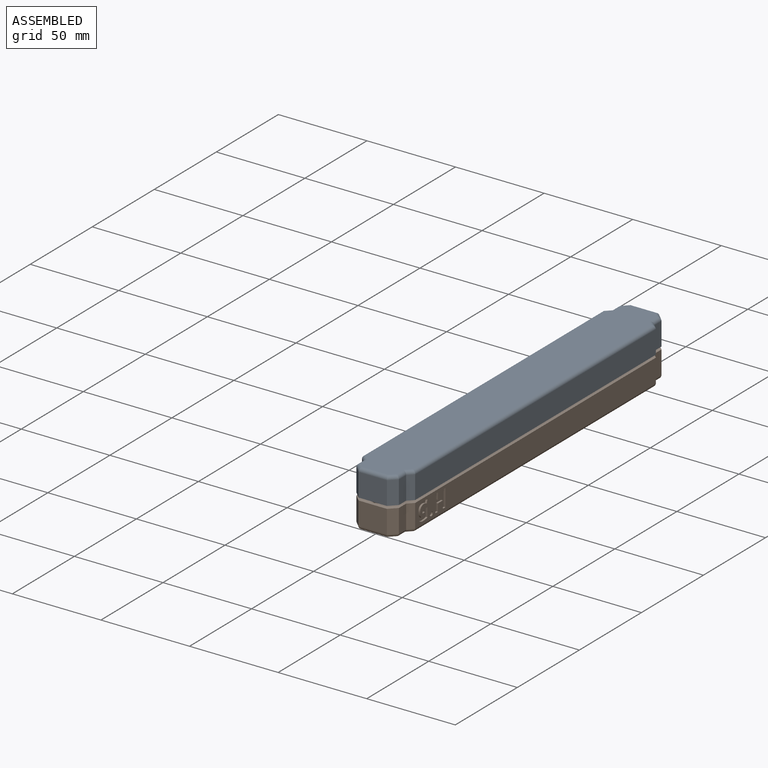
[diagram: assembled view]
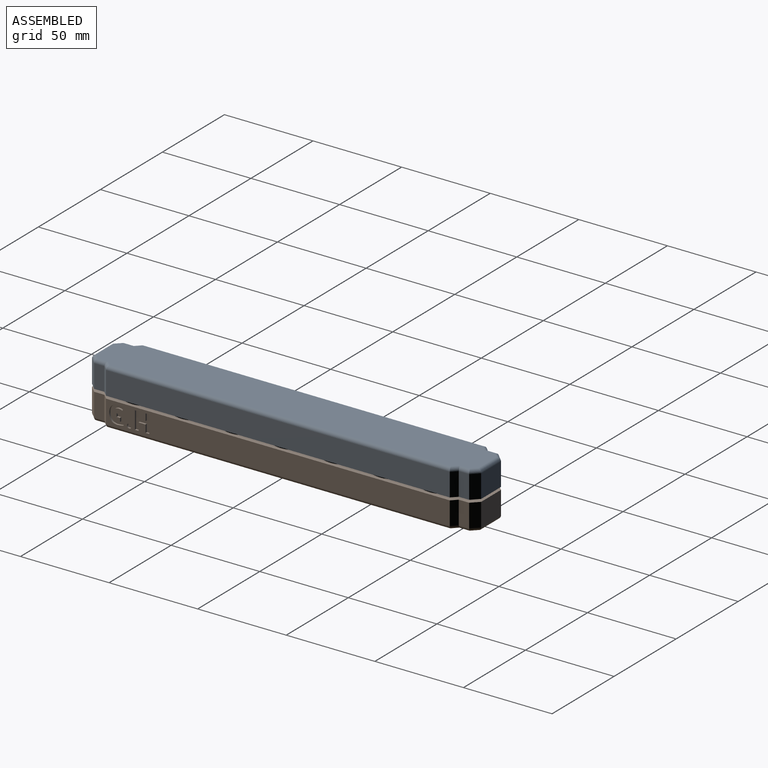
[diagram: assembled view, second angle]
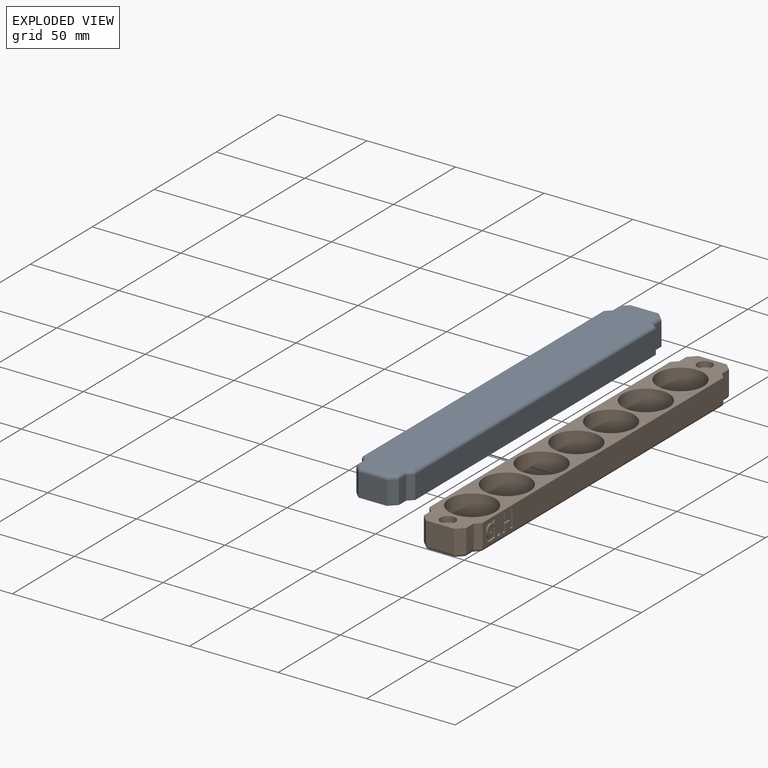
[diagram: exploded view]
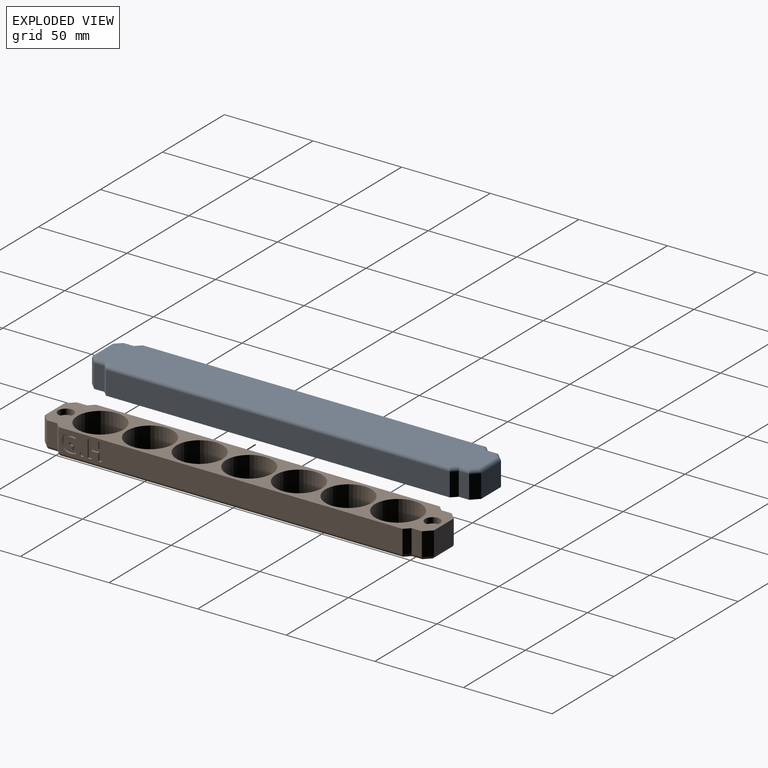
[diagram: exploded view, second angle]
ASSEMBLY  parts=2 mates=2
PART A: 52 faces, bbox 30x219.6x15 mm
  f0: plane 219.64x30mm, normal (0,0,1), area 2591.3mm2, adj f1,f2,f4,f6,f8,f10,f12,f14
  f1: plane 194x13mm, normal (1,0,0), area 2522mm2, adj f0,f19,f20,f42
  f2: plane 194x13mm, normal (-1,0,0), area 2522mm2, adj f0,f18,f21,f45
  f3: plane 215.64x26mm, normal (0,0,-1), area 5468.8mm2, adj f36,f37,f38,f39,f40,f41,f42,f43
  f4: cylinder r=13mm len=26mm, axis (0,0,1), area 1061.9mm2, adj f0,f5
  f5: plane 26x26mm, normal (0,0,1), area 530.9mm2, adj f4
  f6: cylinder r=13mm len=26mm, axis (0,0,1), area 1061.9mm2, adj f0,f7
  f7: plane 26x26mm, normal (0,0,1), area 530.9mm2, adj f6
  f8: cylinder r=13mm len=26mm, axis (0,0,1), area 1061.9mm2, adj f0,f9
  f9: plane 26x26mm, normal (0,0,1), area 530.9mm2, adj f8
  f10: cylinder r=13mm len=26mm, axis (0,0,1), area 1061.9mm2, adj f0,f11
  f11: plane 26x26mm, normal (0,0,1), area 530.9mm2, adj f10
  f12: cylinder r=13mm len=26mm, axis (0,0,1), area 1061.9mm2, adj f0,f13
  f13: plane 26x26mm, normal (0,0,1), area 530.9mm2, adj f12
  f14: cylinder r=13mm len=26mm, axis (0,0,1), area 1061.9mm2, adj f0,f15
  f15: plane 26x26mm, normal (0,0,1), area 530.9mm2, adj f14
  f16: cylinder r=13mm len=26mm, axis (0,0,1), area 1061.9mm2, adj f0,f17
  f17: plane 26x26mm, normal (0,0,1), area 530.9mm2, adj f16
  f18: plane 13x3mm, normal (-0.71,0.71,0), area 55.2mm2, adj f0,f2,f22,f47
  f19: plane 13x3mm, normal (0.71,0.71,0), area 55.2mm2, adj f0,f1,f23,f44
  f20: plane 13x3mm, normal (0.71,-0.71,0), area 55.2mm2, adj f0,f1,f27,f40
  f21: plane 13x3mm, normal (-0.71,-0.71,0), area 55.2mm2, adj f0,f2,f25,f43
  f22: plane 13x5.82mm, normal (-1,0,0), area 75.6mm2, adj f0,f18,f28,f49
  f23: plane 13x5.82mm, normal (1,0,0), area 75.6mm2, adj f0,f19,f29,f46
  f24: plane 16x13mm, normal (0,1,0), area 208mm2, adj f0,f28,f29,f50
  f25: plane 13x5.82mm, normal (-1,0,0), area 75.6mm2, adj f0,f21,f31,f41
  f26: plane 16x13mm, normal (0,-1,0), area 208mm2, adj f0,f30,f31,f37
  f27: plane 13x5.82mm, normal (1,0,0), area 75.6mm2, adj f0,f20,f30,f38
  f28: plane 13x4mm, normal (-0.71,0.71,0), area 73.5mm2, adj f0,f22,f24,f51
  f29: plane 13x4mm, normal (0.71,0.71,0), area 73.5mm2, adj f0,f23,f24,f48
  f30: plane 13x4mm, normal (0.71,-0.71,0), area 73.5mm2, adj f0,f26,f27,f36
  f31: plane 13x4mm, normal (-0.71,-0.71,0), area 73.5mm2, adj f0,f25,f26,f39
  f32: cylinder r=4.25mm len=8.5mm, axis (0,0,1), area 85.5mm2, adj f0,f33
  f33: plane 8.5x8.5mm, normal (0,0,1), area 56.7mm2, adj f32
  f34: cylinder r=4.25mm len=8.5mm, axis (0,0,1), area 85.5mm2, adj f0,f35
  f35: plane 8.5x8.5mm, normal (0,0,1), area 56.7mm2, adj f34
  f36: cylinder r=2mm len=5.41mm, axis (0.71,0.71,0), area 15.9mm2, adj f3,f30,f37,f38
  f37: cylinder r=2mm len=16mm, axis (-1,0,0), area 48.4mm2, adj f3,f26,f36,f39
  f38: cylinder r=2mm len=6.65mm, axis (0,-1,0), area 18.3mm2, adj f3,f27,f36,f40
  f39: cylinder r=2mm len=5.41mm, axis (-0.71,0.71,0), area 15.9mm2, adj f3,f31,f37,f41
  f40: cylinder r=2mm len=5mm, axis (-0.71,-0.71,0), area 13.3mm2, adj f3,f20,f38,f42
  f41: cylinder r=2mm len=6.65mm, axis (0,1,0), area 18.3mm2, adj f3,f25,f39,f43
  f42: cylinder r=2mm len=194mm, axis (0,1,0), area 607.6mm2, adj f1,f3,f40,f44
  f43: cylinder r=2mm len=5mm, axis (0.71,-0.71,0), area 13.3mm2, adj f3,f21,f41,f45
  f44: cylinder r=2mm len=5mm, axis (-0.71,0.71,0), area 13.3mm2, adj f3,f19,f42,f46
  f45: cylinder r=2mm len=194mm, axis (0,-1,0), area 607.6mm2, adj f2,f3,f43,f47
  f46: cylinder r=2mm len=6.65mm, axis (0,-1,0), area 18.3mm2, adj f3,f23,f44,f48
  f47: cylinder r=2mm len=5mm, axis (0.71,0.71,0), area 13.3mm2, adj f3,f18,f45,f49
  f48: cylinder r=2mm len=5.41mm, axis (-0.71,0.71,0), area 15.9mm2, adj f3,f29,f46,f50
  f49: cylinder r=2mm len=6.65mm, axis (0,1,0), area 18.3mm2, adj f3,f22,f47,f51
  f50: cylinder r=2mm len=16mm, axis (1,0,0), area 48.4mm2, adj f3,f24,f48,f51
  f51: cylinder r=2mm len=5.41mm, axis (0.71,0.71,0), area 15.9mm2, adj f3,f28,f49,f50
PART B: 94 faces, bbox 30x219.6x15 mm
  f0: plane 194x13mm, normal (1,0,0), area 2421.1mm2, adj f1,f19,f20,f42,f52,f53,f54,f55
  f1: plane 219.64x30mm, normal (0,0,1), area 2591.3mm2, adj f0,f2,f4,f6,f8,f10,f12,f14
  f2: plane 194x13mm, normal (-1,0,0), area 2522mm2, adj f1,f18,f21,f45
  f3: plane 215.64x26mm, normal (0,0,-1), area 5468.8mm2, adj f36,f37,f38,f39,f40,f41,f42,f43
  f4: cylinder r=13mm len=26mm, axis (0,0,1), area 1061.9mm2, adj f1,f5
  f5: plane 26x26mm, normal (0,0,1), area 530.9mm2, adj f4
  f6: cylinder r=13mm len=26mm, axis (0,0,1), area 1061.9mm2, adj f1,f7
  f7: plane 26x26mm, normal (0,0,1), area 530.9mm2, adj f6
  f8: cylinder r=13mm len=26mm, axis (0,0,1), area 1061.9mm2, adj f1,f9
  f9: plane 26x26mm, normal (0,0,1), area 530.9mm2, adj f8
  f10: cylinder r=13mm len=26mm, axis (0,0,1), area 1061.9mm2, adj f1,f11
  f11: plane 26x26mm, normal (0,0,1), area 530.9mm2, adj f10
  f12: cylinder r=13mm len=26mm, axis (0,0,1), area 1061.9mm2, adj f1,f13
  f13: plane 26x26mm, normal (0,0,1), area 530.9mm2, adj f12
  f14: cylinder r=13mm len=26mm, axis (0,0,1), area 1061.9mm2, adj f1,f15
  f15: plane 26x26mm, normal (0,0,1), area 530.9mm2, adj f14
  f16: cylinder r=13mm len=26mm, axis (0,0,1), area 1061.9mm2, adj f1,f17
  f17: plane 26x26mm, normal (0,0,1), area 530.9mm2, adj f16
  f18: plane 13x3mm, normal (-0.71,0.71,0), area 55.2mm2, adj f1,f2,f22,f47
  f19: plane 13x3mm, normal (0.71,0.71,0), area 55.2mm2, adj f0,f1,f23,f44
  f20: plane 13x3mm, normal (0.71,-0.71,0), area 55.2mm2, adj f0,f1,f27,f40
  f21: plane 13x3mm, normal (-0.71,-0.71,0), area 55.2mm2, adj f1,f2,f25,f43
  f22: plane 13x5.82mm, normal (-1,0,0), area 75.6mm2, adj f1,f18,f28,f49
  f23: plane 13x5.82mm, normal (1,0,0), area 75.6mm2, adj f1,f19,f29,f46
  f24: plane 16x13mm, normal (0,1,0), area 208mm2, adj f1,f28,f29,f50
  f25: plane 13x5.82mm, normal (-1,0,0), area 75.6mm2, adj f1,f21,f31,f41
  f26: plane 16x13mm, normal (0,-1,0), area 208mm2, adj f1,f30,f31,f37
  f27: plane 13x5.82mm, normal (1,0,0), area 75.6mm2, adj f1,f20,f30,f38
  f28: plane 13x4mm, normal (-0.71,0.71,0), area 73.5mm2, adj f1,f22,f24,f51
  f29: plane 13x4mm, normal (0.71,0.71,0), area 73.5mm2, adj f1,f23,f24,f48
  f30: plane 13x4mm, normal (0.71,-0.71,0), area 73.5mm2, adj f1,f26,f27,f36
  f31: plane 13x4mm, normal (-0.71,-0.71,0), area 73.5mm2, adj f1,f25,f26,f39
  f32: cylinder r=4.25mm len=8.5mm, axis (0,0,1), area 85.5mm2, adj f1,f33
  f33: plane 8.5x8.5mm, normal (0,0,1), area 56.7mm2, adj f32
  f34: cylinder r=4.25mm len=8.5mm, axis (0,0,1), area 85.5mm2, adj f1,f35
  f35: plane 8.5x8.5mm, normal (0,0,1), area 56.7mm2, adj f34
  f36: cylinder r=2mm len=5.41mm, axis (0.71,0.71,0), area 15.9mm2, adj f3,f30,f37,f38
  f37: cylinder r=2mm len=16mm, axis (-1,0,0), area 48.4mm2, adj f3,f26,f36,f39
  f38: cylinder r=2mm len=6.65mm, axis (0,-1,0), area 18.3mm2, adj f3,f27,f36,f40
  f39: cylinder r=2mm len=5.41mm, axis (-0.71,0.71,0), area 15.9mm2, adj f3,f31,f37,f41
  f40: cylinder r=2mm len=5mm, axis (-0.71,-0.71,0), area 13.3mm2, adj f3,f20,f38,f42
  f41: cylinder r=2mm len=6.65mm, axis (0,1,0), area 18.3mm2, adj f3,f25,f39,f43
  f42: cylinder r=2mm len=194mm, axis (0,1,0), area 607.6mm2, adj f0,f3,f40,f44
  f43: cylinder r=2mm len=5mm, axis (0.71,-0.71,0), area 13.3mm2, adj f3,f21,f41,f45
  f44: cylinder r=2mm len=5mm, axis (-0.71,0.71,0), area 13.3mm2, adj f3,f19,f42,f46
  f45: cylinder r=2mm len=194mm, axis (0,-1,0), area 607.6mm2, adj f2,f3,f43,f47
  f46: cylinder r=2mm len=6.65mm, axis (0,-1,0), area 18.3mm2, adj f3,f23,f44,f48
  f47: cylinder r=2mm len=5mm, axis (0.71,0.71,0), area 13.3mm2, adj f3,f18,f45,f49
  f48: cylinder r=2mm len=5.41mm, axis (-0.71,0.71,0), area 15.9mm2, adj f3,f29,f46,f50
  f49: cylinder r=2mm len=6.65mm, axis (0,1,0), area 18.3mm2, adj f3,f22,f47,f51
  f50: cylinder r=2mm len=16mm, axis (1,0,0), area 48.4mm2, adj f3,f24,f48,f51
  f51: cylinder r=2mm len=5.41mm, axis (0.71,0.71,0), area 15.9mm2, adj f3,f28,f49,f50
  f52: plane 2.1x1mm, normal (0,0,1), area 2.1mm2, adj f0,f53,f63,f64
  f53: plane 9.92x1mm, normal (0,-1,0), area 9.9mm2, adj f0,f52,f54,f64
  f54: plane 2.1x1mm, normal (0,0,-1), area 2.1mm2, adj f0,f53,f55,f64
  f55: plane 3.89x1mm, normal (0,1,0), area 3.9mm2, adj f0,f54,f56,f64
  f56: plane 3.93x1mm, normal (0,0,-1), area 3.9mm2, adj f0,f55,f57,f64
  f57: plane 3.89x1mm, normal (0,-1,0), area 3.9mm2, adj f0,f56,f58,f64
  f58: plane 2.1x1mm, normal (0,0,-1), area 2.1mm2, adj f0,f57,f59,f64
  f59: plane 9.92x1mm, normal (0,1,0), area 9.9mm2, adj f0,f58,f60,f64
  f60: plane 2.1x1mm, normal (0,0,1), area 2.1mm2, adj f0,f59,f61,f64
  f61: plane 4.28x1mm, normal (0,-1,0), area 4.3mm2, adj f0,f60,f62,f64
  f62: plane 3.93x1mm, normal (0,0,1), area 3.9mm2, adj f0,f61,f63,f64
  f63: plane 4.28x1mm, normal (0,1,0), area 4.3mm2, adj f0,f52,f62,f64
  f64: plane 9.92x8.13mm, normal (1,0,0), area 48.5mm2, adj f52,f53,f54,f55,f56,f57,f58,f59
  f65: extruded ~1x0.86mm, area 0.9mm2, adj f0,f66,f72,f73
  f66: extruded ~1x0.85mm, area 0.9mm2, adj f0,f65,f67,f73
  f67: extruded ~1x0.88mm, area 1mm2, adj f0,f66,f68,f73
  f68: extruded ~1x0.87mm, area 0.9mm2, adj f0,f67,f69,f73
  f69: extruded ~1x0.84mm, area 0.9mm2, adj f0,f68,f70,f73
  f70: extruded ~1x0.85mm, area 0.9mm2, adj f0,f69,f71,f73
  f71: extruded ~1x0.87mm, area 0.9mm2, adj f0,f70,f72,f73
  f72: extruded ~1x0.89mm, area 1mm2, adj f0,f65,f71,f73
  f73: plane 2.37x2.3mm, normal (1,0,0), area 4.5mm2, adj f65,f66,f67,f68,f69,f70,f71,f72
  f74: plane 3.93x1mm, normal (0,0,-1), area 3.9mm2, adj f0,f75,f92,f93
  f75: plane 1.75x1mm, normal (0,1,0), area 1.8mm2, adj f0,f74,f76,f93
  f76: plane 1.88x1mm, normal (0,0,1), area 1.9mm2, adj f0,f75,f77,f93
  f77: plane 2.07x1mm, normal (0,1,0), area 2.1mm2, adj f0,f76,f78,f93
  f78: extruded ~1.34x1mm, area 1.3mm2, adj f0,f77,f79,f93
  f79: extruded ~1.92x1mm, area 2.2mm2, adj f0,f78,f80,f93
  f80: extruded ~2.47x1mm, area 2.6mm2, adj f0,f79,f81,f93
  f81: extruded ~2.46x1mm, area 2.7mm2, adj f0,f80,f82,f93
  f82: extruded ~2.18x1mm, area 2.4mm2, adj f0,f81,f83,f93
  f83: extruded ~2.26x1mm, area 2.3mm2, adj f0,f82,f84,f93
  f84: plane 1.68x1mm, normal (0,-0.92,0.38), area 1.8mm2, adj f0,f83,f85,f93
  f85: extruded ~2.95x1mm, area 3mm2, adj f0,f84,f86,f93
  f86: extruded ~3.81x1.34mm, area 4.1mm2, adj f0,f85,f87,f93
  f87: extruded ~3.74x1.37mm, area 4.1mm2, adj f0,f86,f88,f93
  f88: extruded ~3.79x1.18mm, area 4.1mm2, adj f0,f87,f89,f93
  f89: extruded ~3.43x1.32mm, area 3.8mm2, adj f0,f88,f90,f93
  f90: extruded ~1.73x1mm, area 1.7mm2, adj f0,f89,f91,f93
  f91: extruded ~1.8x1mm, area 1.9mm2, adj f0,f90,f92,f93
  f92: plane 5.14x1mm, normal (0,-1,0), area 5.1mm2, adj f0,f74,f91,f93
  f93: plane 10.19x8.14mm, normal (1,0,0), area 47.9mm2, adj f74,f75,f76,f77,f78,f79,f80,f81
PLACE A rot(axis=(0,-1,0),180deg) t=(3.15,2.97,2.78)mm
PLACE B t=(3.15,2.97,-28.72)mm
MATE planar A.f2 <-> B.f0  axis (1,0,0) through (18.15,2.97,-5.72)mm
MATE planar A.f26 <-> B.f26  axis (0,-1,0) through (3.15,-106.84,-5.72)mm
